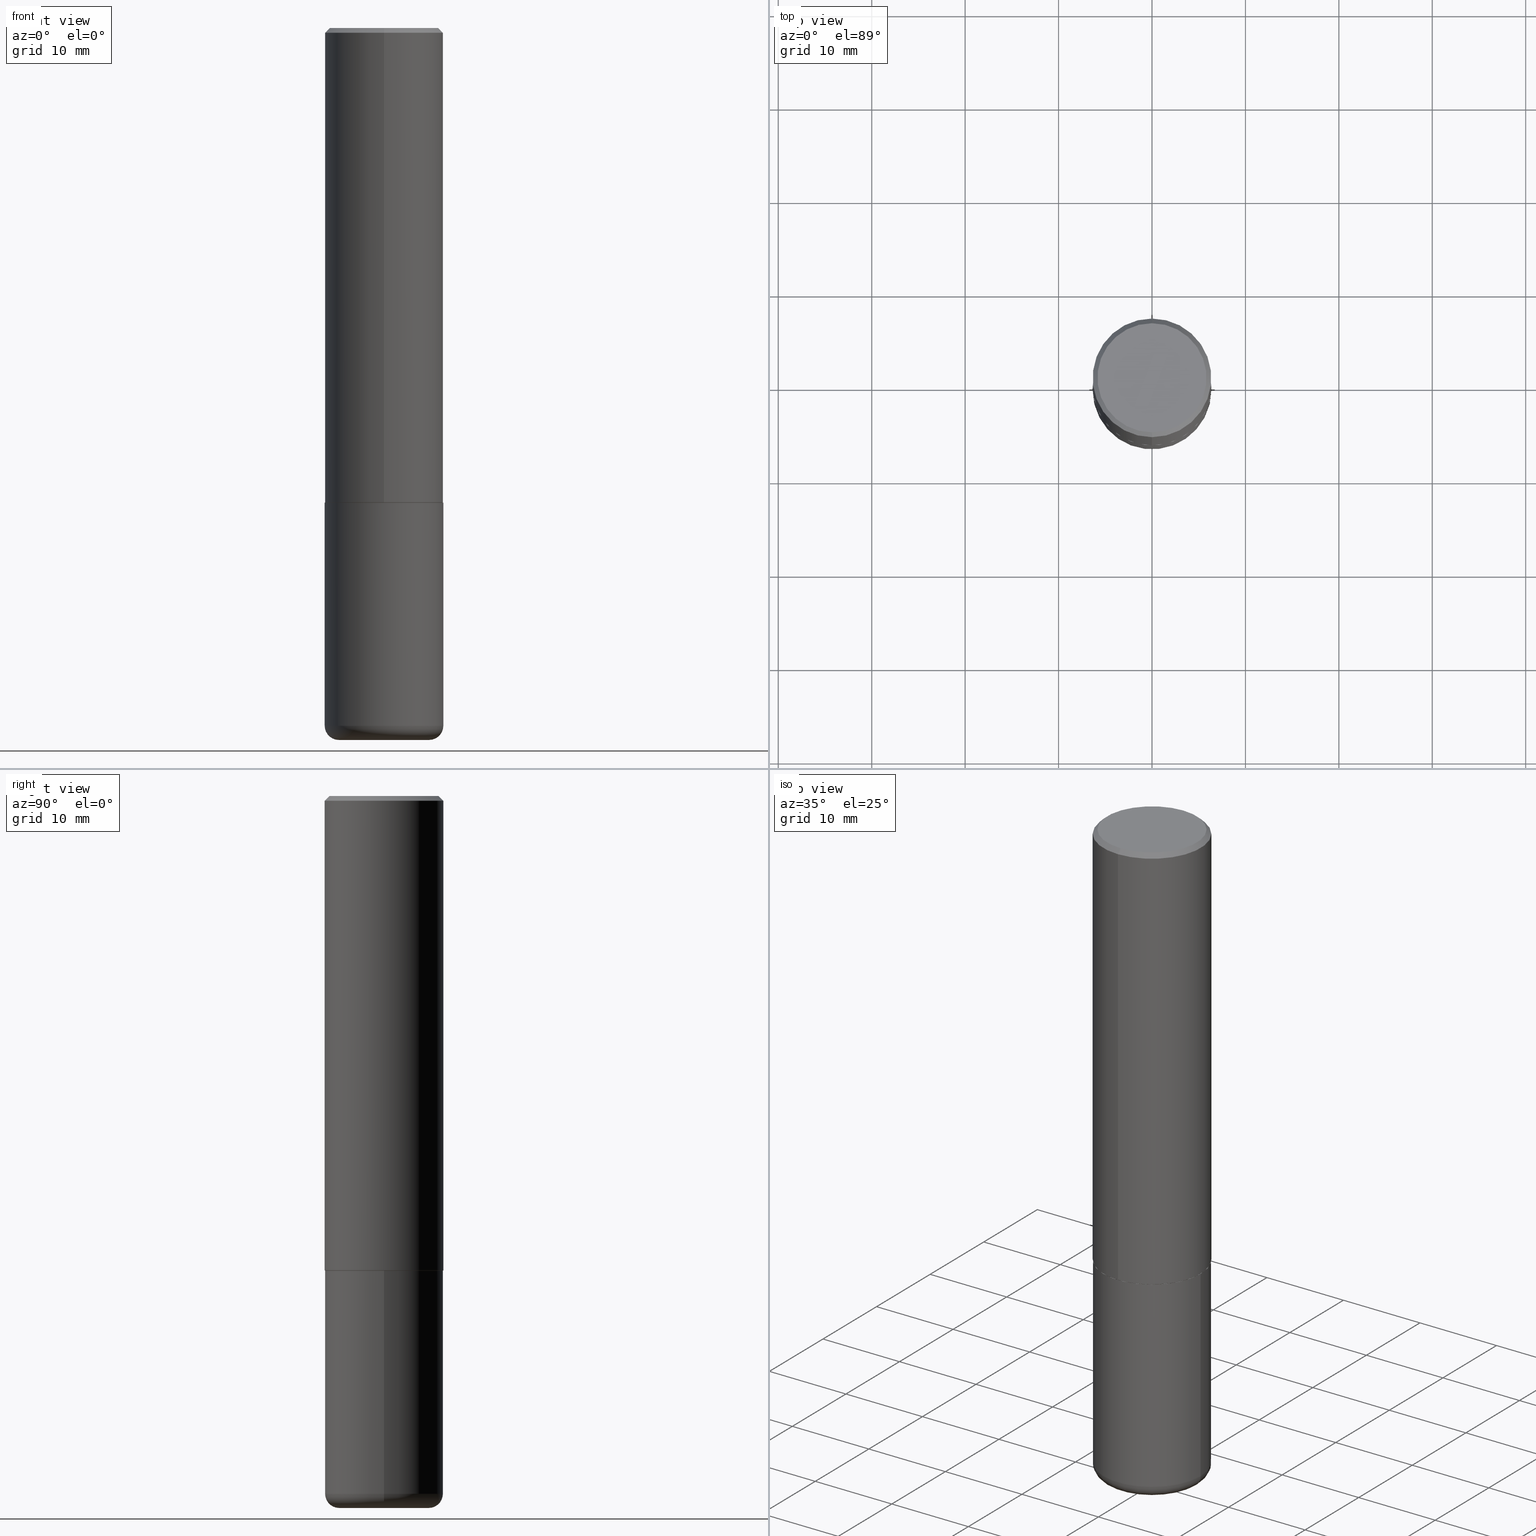
[diagram: canonical four-view strip — front | top / right | iso, engineering-drawing reading convention]
A machine part, canonical four-view strip (front | top / right | iso — engineering-drawing reading convention). The complete STEP part file that produces these views, byte-faithful:
ISO-10303-21;
HEADER;
FILE_DESCRIPTION (( 'STEP AP203' ),
    '1' );
FILE_NAME ('38336.STEP',
    '2024-03-02T23:28:40',
    ( '' ),
    ( '' ),
    'SwSTEP 2.0',
    'SolidWorks 2023',
    '' );
FILE_SCHEMA (( 'CONFIG_CONTROL_DESIGN' ));
ENDSEC;

DATA;
#1 = APPROVAL_STATUS ( 'not_yet_approved' ) ;
#2 = EDGE_CURVE ( 'NONE', #149, #206, #320, .T. ) ;
#3 = ORIENTED_EDGE ( 'NONE', *, *, #411, .F. ) ;
#4 = CONICAL_SURFACE ( 'NONE', #205, 0.2489999999999999991, 0.7853981633974141952 ) ;
#5 = FACE_OUTER_BOUND ( 'NONE', #162, .T. ) ;
#6 = EDGE_LOOP ( 'NONE', ( #123, #146, #102, #276 ) ) ;
#7 = PERSON_AND_ORGANIZATION ( #37, #291 ) ;
#8 = CARTESIAN_POINT ( 'NONE',  ( 0.2500000000000000000, -1.745740669421566678E-15, 1.219044193948983948E-29 ) ) ;
#9 = CARTESIAN_POINT ( 'NONE',  ( 4.893010930331986262E-29, -6.979993568359192387E-15, -2.000000000000000444 ) ) ;
#10 = CC_DESIGN_DATE_AND_TIME_ASSIGNMENT ( #272, #165, ( #96 ) ) ;
#11 = SHAPE_DEFINITION_REPRESENTATION ( #293, #199 ) ;
#12 = DIRECTION ( 'NONE',  ( 1.000000000000000000, -6.982962677686265133E-15, 4.883557194083112340E-29 ) ) ;
#13 = DIRECTION ( 'NONE',  ( -2.446505465165992010E-29, 3.489996784179595405E-15, 1.000000000000000000 ) ) ;
#14 = EDGE_CURVE ( 'NONE', #89, #206, #298, .T. ) ;
#15 = CARTESIAN_POINT ( 'NONE',  ( 4.890937612370273754E-29, -6.982962677686291954E-15, -2.000000000000000444 ) ) ;
#16 = ORIENTED_EDGE ( 'NONE', *, *, #221, .T. ) ;
#17 = EDGE_LOOP ( 'NONE', ( #374, #297, #16, #211 ) ) ;
#18 = LINE ( 'NONE', #312, #176 ) ;
#19 = VERTEX_POINT ( 'NONE', #352 ) ;
#20 = DIRECTION ( 'NONE',  ( -2.445468806185136597E-29, 3.491481338843145583E-15, 1.000000000000000000 ) ) ;
#21 = CC_DESIGN_APPROVAL ( #136, ( #371 ) ) ;
#22 = EDGE_CURVE ( 'NONE', #19, #89, #36, .T. ) ;
#23 = ADVANCED_FACE ( 'NONE', ( #233 ), #72, .F. ) ;
#24 = FACE_OUTER_BOUND ( 'NONE', #311, .T. ) ;
#25 = LINE ( 'NONE', #302, #279 ) ;
#26 = AXIS2_PLACEMENT_3D ( 'NONE', #387, #358, #190 ) ;
#27 = CARTESIAN_POINT ( 'NONE',  ( -0.1899999999999999745, -8.806505557691924342E-15, -2.999999999999999556 ) ) ;
#28 = EDGE_LOOP ( 'NONE', ( #175, #350, #208, #3 ) ) ;
#29 = DATE_TIME_ROLE ( 'creation_date' ) ;
#30 = CARTESIAN_POINT ( 'NONE',  ( 4.893010930331997927E-31, -6.979993568359209594E-17, -0.02000000000000005593 ) ) ;
#31 = VERTEX_POINT ( 'NONE', #348 ) ;
#32 = EDGE_CURVE ( 'NONE', #144, #331, #71, .T. ) ;
#33 = APPROVAL_PERSON_ORGANIZATION ( #300, #136, #380 ) ;
#34 = VERTEX_POINT ( 'NONE', #353 ) ;
#35 = DIRECTION ( 'NONE',  ( -2.445468806185136597E-29, 3.491481338843145583E-15, 1.000000000000000000 ) ) ;
#36 = CIRCLE ( 'NONE', #119, 0.2489999999999999991 ) ;
#37 = PERSON ( 'UNSPECIFIED', 'UNSPECIFIED', 'UNSPECIFIED', ('UNSPECIFIED'), ('UNSPECIFIED'), ('UNSPECIFIED') ) ;
#38 = PERSON_AND_ORGANIZATION ( #37, #291 ) ;
#39 = DIRECTION ( 'NONE',  ( -6.982962677686265922E-15, -1.000000000000000000, 3.483106191921935554E-15 ) ) ;
#40 = CC_DESIGN_PERSON_AND_ORGANIZATION_ASSIGNMENT ( #133, #65, ( #371 ) ) ;
#41 = LINE ( 'NONE', #337, #134 ) ;
#42 = CC_DESIGN_PERSON_AND_ORGANIZATION_ASSIGNMENT ( #152, #288, ( #289 ) ) ;
#43 = CARTESIAN_POINT ( 'NONE',  ( 1.675911042644703379E-15, 0.2299999999999997602, -5.981521084091029123E-16 ) ) ;
#44 = VERTEX_POINT ( 'NONE', #292 ) ;
#45 = AXIS2_PLACEMENT_3D ( 'NONE', #198, #196, #12 ) ;
#46 = APPLICATION_CONTEXT ( 'configuration controlled 3d designs of mechanical parts and assemblies' ) ;
#47 = DIRECTION ( 'NONE',  ( -2.445468806185136877E-29, 3.491481338843145188E-15, 1.000000000000000000 ) ) ;
#48 = ADVANCED_FACE ( 'NONE', ( #416 ), #258, .T. ) ;
#49 = DIRECTION ( 'NONE',  ( -2.446505465165992010E-29, 3.489996784179595405E-15, 1.000000000000000000 ) ) ;
#50 = LOCAL_TIME ( 18, 28, 40.00000000000000000, #218 ) ;
#51 = CIRCLE ( 'NONE', #191, 0.05999999999999966471 ) ;
#52 = EDGE_LOOP ( 'NONE', ( #181, #240, #307, #180 ) ) ;
#53 = CONICAL_SURFACE ( 'NONE', #220, 0.2500000000000000000, 0.7853981633974476129 ) ;
#54 = EDGE_CURVE ( 'NONE', #44, #97, #243, .T. ) ;
#55 = DATE_AND_TIME ( #349, #50 ) ;
#56 = DIRECTION ( 'NONE',  ( -2.446505465165992010E-29, 3.489996784179595405E-15, 1.000000000000000000 ) ) ;
#57 = CARTESIAN_POINT ( 'NONE',  ( -1.646519519465166376E-15, -0.2299999999999997602, 1.007246412313509341E-15 ) ) ;
#58 = AXIS2_PLACEMENT_3D ( 'NONE', #109, #174, #114 ) ;
#59 = COORDINATED_UNIVERSAL_TIME_OFFSET ( 5, 0, .BEHIND. ) ;
#60 = FACE_OUTER_BOUND ( 'NONE', #17, .T. ) ;
#61 = AXIS2_PLACEMENT_3D ( 'NONE', #182, #20, #250 ) ;
#62 = DATE_AND_TIME ( #257, #197 ) ;
#63 = DIRECTION ( 'NONE',  ( -2.445468806185136597E-29, 3.491481338843145583E-15, 1.000000000000000000 ) ) ;
#64 = ADVANCED_FACE ( 'NONE', ( #5 ), #53, .T. ) ;
#65 = PERSON_AND_ORGANIZATION_ROLE ( 'creator' ) ;
#66 = ORIENTED_EDGE ( 'NONE', *, *, #338, .T. ) ;
#67 = FACE_OUTER_BOUND ( 'NONE', #132, .T. ) ;
#68 = VERTEX_POINT ( 'NONE', #57 ) ;
#69 = EDGE_CURVE ( 'NONE', #206, #149, #308, .T. ) ;
#70 = EDGE_LOOP ( 'NONE', ( #139, #210, #126, #395 ) ) ;
#71 = CIRCLE ( 'NONE', #61, 0.2500000000000000000 ) ;
#72 = PLANE ( 'NONE',  #249 ) ;
#73 = PLANE ( 'NONE',  #92 ) ;
#74 = ORIENTED_EDGE ( 'NONE', *, *, #14, .F. ) ;
#75 = DIRECTION ( 'NONE',  ( -6.982962677686265922E-15, -1.000000000000000000, 3.489996784179595405E-15 ) ) ;
#76 = DIRECTION ( 'NONE',  ( -2.445468806185136597E-29, 3.491481338843145583E-15, 1.000000000000000000 ) ) ;
#77 = ORIENTED_EDGE ( 'NONE', *, *, #221, .F. ) ;
#78 = DIRECTION ( 'NONE',  ( -1.000000000000000000, 6.982962677686265922E-15, -4.876176775795935793E-29 ) ) ;
#79 = AXIS2_PLACEMENT_3D ( 'NONE', #346, #49, #111 ) ;
#80 = AXIS2_PLACEMENT_3D ( 'NONE', #9, #13, #402 ) ;
#81 = VECTOR ( 'NONE', #303, 39.37007874015748143 ) ;
#82 =( GEOMETRIC_REPRESENTATION_CONTEXT ( 3 ) GLOBAL_UNCERTAINTY_ASSIGNED_CONTEXT ( ( #403 ) ) GLOBAL_UNIT_ASSIGNED_CONTEXT ( ( #213, #150, #251 ) ) REPRESENTATION_CONTEXT ( 'NONE', 'WORKASPACE' ) );
#83 = EDGE_CURVE ( 'NONE', #19, #149, #25, .T. ) ;
#84 = CARTESIAN_POINT ( 'NONE',  ( 4.893010930331997927E-31, -6.979993568359209594E-17, -0.02000000000000005593 ) ) ;
#85 = CIRCLE ( 'NONE', #295, 0.2500000000000000000 ) ;
#86 = APPROVAL_DATE_TIME ( #62, #299 ) ;
#87 = CARTESIAN_POINT ( 'NONE',  ( 0.000000000000000000, 0.000000000000000000, 0.000000000000000000 ) ) ;
#88 = CARTESIAN_POINT ( 'NONE',  ( -1.738757706743831162E-15, -0.2490000000000069658, -1.999999999999999778 ) ) ;
#89 = VERTEX_POINT ( 'NONE', #88 ) ;
#90 = EDGE_CURVE ( 'NONE', #206, #160, #290, .T. ) ;
#91 = CARTESIAN_POINT ( 'NONE',  ( -0.1899999999999999745, -8.914923938254659640E-15, -2.940000000000000391 ) ) ;
#92 = AXIS2_PLACEMENT_3D ( 'NONE', #101, #269, #202 ) ;
#93 = ORIENTED_EDGE ( 'NONE', *, *, #215, .F. ) ;
#94 = DIRECTION ( 'NONE',  ( 6.982962677686265922E-15, 1.000000000000000000, -3.483106191921935554E-15 ) ) ;
#95 = ORIENTED_EDGE ( 'NONE', *, *, #283, .T. ) ;
#96 = SECURITY_CLASSIFICATION ( '', '', #334 ) ;
#97 = VERTEX_POINT ( 'NONE', #27 ) ;
#98 = PERSON_AND_ORGANIZATION ( #37, #291 ) ;
#99 = PERSON_AND_ORGANIZATION_ROLE ( 'classification_officer' ) ;
#100 = DIRECTION ( 'NONE',  ( 1.000000000000000000, -6.982962677686266711E-15, 4.876176775795935793E-29 ) ) ;
#101 = CARTESIAN_POINT ( 'NONE',  ( 1.606081415867839490E-15, 0.2299999999999997602, -7.004256843852046181E-16 ) ) ;
#102 = ORIENTED_EDGE ( 'NONE', *, *, #90, .T. ) ;
#103 = AXIS2_PLACEMENT_3D ( 'NONE', #316, #280, #340 ) ;
#104 = CC_DESIGN_DATE_AND_TIME_ASSIGNMENT ( #253, #29, ( #289 ) ) ;
#105 = DIRECTION ( 'NONE',  ( 1.000000000000000000, -6.982962677686275388E-15, 0.000000000000000000 ) ) ;
#106 = AXIS2_PLACEMENT_3D ( 'NONE', #384, #418, #122 ) ;
#107 = CARTESIAN_POINT ( 'NONE',  ( -5.004257251352038458E-45, 7.138689025262842706E-31, 2.045471519522032143E-16 ) ) ;
#108 = CC_DESIGN_PERSON_AND_ORGANIZATION_ASSIGNMENT ( #327, #185, ( #145 ) ) ;
#109 = CARTESIAN_POINT ( 'NONE',  ( 0.000000000000000000, 0.000000000000000000, 0.000000000000000000 ) ) ;
#110 = CONICAL_SURFACE ( 'NONE', #103, 0.2489999999999999991, 0.7853981633974141952 ) ;
#111 = DIRECTION ( 'NONE',  ( -6.982962677686265922E-15, -1.000000000000000000, 3.489996784179595405E-15 ) ) ;
#112 = EDGE_LOOP ( 'NONE', ( #313, #336 ) ) ;
#113 = CIRCLE ( 'NONE', #151, 0.2500000000000000000 ) ;
#114 = DIRECTION ( 'NONE',  ( 1.000000000000000000, -6.982962677686266711E-15, 4.876176775795935793E-29 ) ) ;
#115 = EDGE_CURVE ( 'NONE', #331, #144, #85, .T. ) ;
#116 = DIRECTION ( 'NONE',  ( 1.000000000000000000, -6.982962677686262766E-15, 0.000000000000000000 ) ) ;
#117 = CIRCLE ( 'NONE', #242, 0.2299999999999997602 ) ;
#118 = CYLINDRICAL_SURFACE ( 'NONE', #345, 0.2500000000000001110 ) ;
#119 = AXIS2_PLACEMENT_3D ( 'NONE', #130, #268, #167 ) ;
#120 = PLANE ( 'NONE',  #26 ) ;
#121 = PRODUCT_RELATED_PRODUCT_CATEGORY ( 'detail', '', ( #145 ) ) ;
#122 = DIRECTION ( 'NONE',  ( -6.982962677686266711E-15, -1.000000000000000000, 3.489996784179595799E-15 ) ) ;
#123 = ORIENTED_EDGE ( 'NONE', *, *, #283, .F. ) ;
#124 = DIRECTION ( 'NONE',  ( 5.024295867787889629E-15, 0.7071067811865257013, 0.7071067811865691111 ) ) ;
#125 = MANIFOLD_SOLID_BREP ( 'Body-Move/Copy2[2]', #359 ) ;
#126 = ORIENTED_EDGE ( 'NONE', *, *, #32, .F. ) ;
#127 = DIRECTION ( 'NONE',  ( -4.937700262164378437E-15, -0.7071067811865208164, 0.7071067811865739960 ) ) ;
#128 = APPROVAL_ROLE ( '' ) ;
#129 = LINE ( 'NONE', #168, #179 ) ;
#130 = CARTESIAN_POINT ( 'NONE',  ( 4.893010930331986262E-29, -6.979993568359192387E-15, -2.000000000000000444 ) ) ;
#131 = CYLINDRICAL_SURFACE ( 'NONE', #216, 0.2500000000000000000 ) ;
#132 = EDGE_LOOP ( 'NONE', ( #203, #282, #410, #137 ) ) ;
#133 = PERSON_AND_ORGANIZATION ( #37, #291 ) ;
#134 = VECTOR ( 'NONE', #237, 39.37007874015748854 ) ;
#135 = CARTESIAN_POINT ( 'NONE',  ( 7.189678290184301639E-29, -1.026495513619884961E-14, -2.940000000000000391 ) ) ;
#136 = APPROVAL ( #1, 'UNSPECIFIED' ) ;
#137 = ORIENTED_EDGE ( 'NONE', *, *, #115, .F. ) ;
#138 = CARTESIAN_POINT ( 'NONE',  ( -0.2500000000000000000, -6.847602067542319531E-15, -2.000000000000000444 ) ) ;
#139 = ORIENTED_EDGE ( 'NONE', *, *, #54, .T. ) ;
#140 = CIRCLE ( 'NONE', #80, 0.2489999999999999991 ) ;
#141 = CARTESIAN_POINT ( 'NONE',  ( -0.2499999999999998335, -8.488598296798600727E-15, -2.940000000000000391 ) ) ;
#142 = ORIENTED_EDGE ( 'NONE', *, *, #69, .T. ) ;
#143 = CARTESIAN_POINT ( 'NONE',  ( 0.1899999999999999745, -1.159171804495923808E-14, -2.940000000000000391 ) ) ;
#144 = VERTEX_POINT ( 'NONE', #381 ) ;
#145 = PRODUCT ( '38336', '38336', '', ( #383 ) ) ;
#146 = ORIENTED_EDGE ( 'NONE', *, *, #2, .T. ) ;
#147 = CIRCLE ( 'NONE', #362, 0.2500000000000000000 ) ;
#148 = FACE_OUTER_BOUND ( 'NONE', #52, .T. ) ;
#149 = VERTEX_POINT ( 'NONE', #415 ) ;
#150 =( NAMED_UNIT ( * ) PLANE_ANGLE_UNIT ( ) SI_UNIT ( $, .RADIAN. ) );
#151 = AXIS2_PLACEMENT_3D ( 'NONE', #364, #366, #170 ) ;
#152 = PERSON_AND_ORGANIZATION ( #37, #291 ) ;
#153 = DIRECTION ( 'NONE',  ( -2.446505465165992010E-29, 3.489996784179595405E-15, 1.000000000000000000 ) ) ;
#154 = DIRECTION ( 'NONE',  ( 1.000000000000000000, 0.000000000000000000, 0.000000000000000000 ) ) ;
#155 = PLANE ( 'NONE',  #212 ) ;
#156 = COORDINATED_UNIVERSAL_TIME_OFFSET ( 5, 0, .BEHIND. ) ;
#157 = CARTESIAN_POINT ( 'NONE',  ( 1.336053039146161825E-28, -1.847555615484388985E-15, -2.999999999999999556 ) ) ;
#158 = AXIS2_PLACEMENT_3D ( 'NONE', #30, #266, #261 ) ;
#159 = CARTESIAN_POINT ( 'NONE',  ( -1.745740669421519346E-15, -0.2500000000000072164, -1.998999999999999444 ) ) ;
#160 = VERTEX_POINT ( 'NONE', #326 ) ;
#161 = EDGE_CURVE ( 'NONE', #97, #44, #173, .T. ) ;
#162 = EDGE_LOOP ( 'NONE', ( #93, #401, #393, #365 ) ) ;
#163 = DIRECTION ( 'NONE',  ( -2.445468806185136597E-29, 3.491481338843145583E-15, 1.000000000000000000 ) ) ;
#164 = AXIS2_PLACEMENT_3D ( 'NONE', #228, #153, #324 ) ;
#165 = DATE_TIME_ROLE ( 'classification_date' ) ;
#166 = FACE_OUTER_BOUND ( 'NONE', #70, .T. ) ;
#167 = DIRECTION ( 'NONE',  ( -6.982962677686265133E-15, -1.000000000000000000, 3.291383124896702687E-15 ) ) ;
#168 = CARTESIAN_POINT ( 'NONE',  ( 1.776356839400251254E-15, 0.2500000000000001110, -8.724991960448993443E-16 ) ) ;
#169 = LOCAL_TIME ( 18, 28, 40.00000000000000000, #226 ) ;
#170 = DIRECTION ( 'NONE',  ( -6.982962677686265922E-15, -1.000000000000000000, 3.483106191921935554E-15 ) ) ;
#171 = ORIENTED_EDGE ( 'NONE', *, *, #305, .T. ) ;
#172 = CALENDAR_DATE ( 2024, 2, 3 ) ;
#173 = CIRCLE ( 'NONE', #339, 0.1899999999999999745 ) ;
#174 = DIRECTION ( 'NONE',  ( -2.445468806185136597E-29, 3.491481338843145583E-15, 1.000000000000000000 ) ) ;
#175 = ORIENTED_EDGE ( 'NONE', *, *, #338, .F. ) ;
#176 = VECTOR ( 'NONE', #285, 39.37007874015748854 ) ;
#177 = ADVANCED_FACE ( 'NONE', ( #351 ), #118, .T. ) ;
#178 = CARTESIAN_POINT ( 'NONE',  ( -0.2500000000000000000, 1.776356839400250465E-15, -1.229733772563726445E-29 ) ) ;
#179 = VECTOR ( 'NONE', #306, 39.37007874015748143 ) ;
#180 = ORIENTED_EDGE ( 'NONE', *, *, #2, .F. ) ;
#181 = ORIENTED_EDGE ( 'NONE', *, *, #83, .F. ) ;
#182 = CARTESIAN_POINT ( 'NONE',  ( 7.189678290184301639E-29, -1.026495513619884961E-14, -2.940000000000000391 ) ) ;
#183 = VECTOR ( 'NONE', #47, 39.37007874015748143 ) ;
#184 = ADVANCED_FACE ( 'NONE', ( #60 ), #207, .T. ) ;
#185 = PERSON_AND_ORGANIZATION_ROLE ( 'design_owner' ) ;
#186 = APPROVAL_DATE_TIME ( #55, #136 ) ;
#187 = CARTESIAN_POINT ( 'NONE',  ( 7.336406418555408669E-29, -1.047444401652943478E-14, -2.999999999999999556 ) ) ;
#188 = EDGE_CURVE ( 'NONE', #97, #331, #394, .T. ) ;
#189 = FACE_OUTER_BOUND ( 'NONE', #112, .T. ) ;
#190 = DIRECTION ( 'NONE',  ( -6.982962677686265922E-15, -1.000000000000000000, 3.489996784179595405E-15 ) ) ;
#191 = AXIS2_PLACEMENT_3D ( 'NONE', #143, #373, #105 ) ;
#192 = CLOSED_SHELL ( 'NONE', ( #406, #265, #23, #256, #241, #195 ) ) ;
#193 = DIRECTION ( 'NONE',  ( -1.000000000000000000, 6.982962677686265922E-15, -4.876176775795935793E-29 ) ) ;
#194 = DESIGN_CONTEXT ( 'detailed design', #46, 'design' ) ;
#195 = ADVANCED_FACE ( 'NONE', ( #24 ), #155, .T. ) ;
#196 = DIRECTION ( 'NONE',  ( -2.445468806185136597E-29, 3.491481338843145583E-15, 1.000000000000000000 ) ) ;
#197 = LOCAL_TIME ( 18, 28, 40.00000000000000000, #59 ) ;
#198 = CARTESIAN_POINT ( 'NONE',  ( 7.189678290184301639E-29, -1.026495513619884961E-14, -2.940000000000000391 ) ) ;
#199 = ADVANCED_BREP_SHAPE_REPRESENTATION ( '38336', ( #413, #125, #217 ), #82 ) ;
#200 = VECTOR ( 'NONE', #263, 39.37007874015748143 ) ;
#201 = FACE_OUTER_BOUND ( 'NONE', #28, .T. ) ;
#202 = DIRECTION ( 'NONE',  ( 6.982962677686265922E-15, 1.000000000000000000, -3.489996784179595405E-15 ) ) ;
#203 = ORIENTED_EDGE ( 'NONE', *, *, #188, .F. ) ;
#204 = ADVANCED_FACE ( 'NONE', ( #189 ), #120, .F. ) ;
#205 = AXIS2_PLACEMENT_3D ( 'NONE', #281, #376, #377 ) ;
#206 = VERTEX_POINT ( 'NONE', #159 ) ;
#207 = CONICAL_SURFACE ( 'NONE', #158, 0.2500000000000000000, 0.7853981633974476129 ) ;
#208 = ORIENTED_EDGE ( 'NONE', *, *, #275, .T. ) ;
#209 = ADVANCED_FACE ( 'NONE', ( #296 ), #73, .F. ) ;
#210 = ORIENTED_EDGE ( 'NONE', *, *, #188, .T. ) ;
#211 = ORIENTED_EDGE ( 'NONE', *, *, #370, .F. ) ;
#212 = AXIS2_PLACEMENT_3D ( 'NONE', #157, #222, #193 ) ;
#213 =( CONVERSION_BASED_UNIT ( 'INCH', #342 ) LENGTH_UNIT ( ) NAMED_UNIT ( #235 ) );
#214 = ORIENTED_EDGE ( 'NONE', *, *, #90, .F. ) ;
#215 = EDGE_CURVE ( 'NONE', #68, #160, #41, .T. ) ;
#216 = AXIS2_PLACEMENT_3D ( 'NONE', #332, #35, #100 ) ;
#217 = AXIS2_PLACEMENT_3D ( 'NONE', #260, #386, #154 ) ;
#218 = COORDINATED_UNIVERSAL_TIME_OFFSET ( 5, 0, .BEHIND. ) ;
#219 = DIRECTION ( 'NONE',  ( 1.000000000000000000, -6.982962677686273021E-15, 0.000000000000000000 ) ) ;
#220 = AXIS2_PLACEMENT_3D ( 'NONE', #84, #328, #94 ) ;
#221 = EDGE_CURVE ( 'NONE', #160, #34, #113, .T. ) ;
#222 = DIRECTION ( 'NONE',  ( 2.438088387897960049E-29, -3.491481338843145188E-15, -1.000000000000000000 ) ) ;
#223 = PERSON_AND_ORGANIZATION ( #37, #291 ) ;
#224 = DIRECTION ( 'NONE',  ( -6.982962677686266711E-15, -1.000000000000000000, 3.489996784179595799E-15 ) ) ;
#225 = DIRECTION ( 'NONE',  ( -2.445468806185136597E-29, 3.491481338843145583E-15, 1.000000000000000000 ) ) ;
#226 = COORDINATED_UNIVERSAL_TIME_OFFSET ( 5, 0, .BEHIND. ) ;
#227 = EDGE_LOOP ( 'NONE', ( #245, #369 ) ) ;
#228 = CARTESIAN_POINT ( 'NONE',  ( 4.890564424866818786E-29, -6.976503571575011888E-15, -1.999000000000000110 ) ) ;
#229 = EDGE_LOOP ( 'NONE', ( #360, #66, #232, #273 ) ) ;
#230 = PERSON_AND_ORGANIZATION_ROLE ( 'design_supplier' ) ;
#231 = APPROVAL_PERSON_ORGANIZATION ( #98, #356, #128 ) ;
#232 = ORIENTED_EDGE ( 'NONE', *, *, #361, .F. ) ;
#233 = FACE_OUTER_BOUND ( 'NONE', #267, .T. ) ;
#234 = VECTOR ( 'NONE', #127, 39.37007874015748854 ) ;
#235 = DIMENSIONAL_EXPONENTS ( 1.000000000000000000, 0.000000000000000000, 0.000000000000000000, 0.000000000000000000, 0.000000000000000000, 0.000000000000000000, 0.000000000000000000 ) ;
#236 = CC_DESIGN_PERSON_AND_ORGANIZATION_ASSIGNMENT ( #7, #99, ( #96 ) ) ;
#237 = DIRECTION ( 'NONE',  ( -4.851104656540959542E-15, -0.7071067811865493491, -0.7071067811865454633 ) ) ;
#238 = CIRCLE ( 'NONE', #79, 0.2299999999999997602 ) ;
#239 = DIRECTION ( 'NONE',  ( 1.000000000000000000, -6.982962677686265133E-15, 4.883557194083112340E-29 ) ) ;
#240 = ORIENTED_EDGE ( 'NONE', *, *, #22, .T. ) ;
#241 = ADVANCED_FACE ( 'NONE', ( #67 ), #259, .T. ) ;
#242 = AXIS2_PLACEMENT_3D ( 'NONE', #107, #287, #75 ) ;
#243 = CIRCLE ( 'NONE', #367, 0.1899999999999999745 ) ;
#244 = FACE_OUTER_BOUND ( 'NONE', #229, .T. ) ;
#245 = ORIENTED_EDGE ( 'NONE', *, *, #378, .T. ) ;
#246 = CC_DESIGN_APPROVAL ( #299, ( #289 ) ) ;
#247 = APPLICATION_CONTEXT ( 'configuration controlled 3d designs of mechanical parts and assemblies' ) ;
#248 =( LENGTH_UNIT ( ) NAMED_UNIT ( * ) SI_UNIT ( $, .METRE. ) );
#249 = AXIS2_PLACEMENT_3D ( 'NONE', #317, #252, #78 ) ;
#250 = DIRECTION ( 'NONE',  ( 1.000000000000000000, -6.982962677686262766E-15, 0.000000000000000000 ) ) ;
#251 =( NAMED_UNIT ( * ) SI_UNIT ( $, .STERADIAN. ) SOLID_ANGLE_UNIT ( ) );
#252 = DIRECTION ( 'NONE',  ( 2.438088387897960049E-29, -3.491481338843145188E-15, -1.000000000000000000 ) ) ;
#253 = DATE_AND_TIME ( #325, #254 ) ;
#254 = LOCAL_TIME ( 18, 28, 40.00000000000000000, #156 ) ;
#255 = DIRECTION ( 'NONE',  ( -2.445468806185136597E-29, 3.491481338843145583E-15, 1.000000000000000000 ) ) ;
#256 = ADVANCED_FACE ( 'NONE', ( #201 ), #131, .T. ) ;
#257 = CALENDAR_DATE ( 2024, 2, 3 ) ;
#258 = CYLINDRICAL_SURFACE ( 'NONE', #106, 0.2500000000000001110 ) ;
#259 = TOROIDAL_SURFACE ( 'NONE', #45, 0.1899999999999999745, 0.05999999999999968553 ) ;
#260 = CARTESIAN_POINT ( 'NONE',  ( 0.000000000000000000, 0.000000000000000000, 0.000000000000000000 ) ) ;
#261 = DIRECTION ( 'NONE',  ( 6.982962677686265922E-15, 1.000000000000000000, -3.483106191921935554E-15 ) ) ;
#262 = APPLICATION_PROTOCOL_DEFINITION ( 'international standard', 'config_control_design', 1994, #247 ) ;
#263 = DIRECTION ( 'NONE',  ( -2.446505465165992010E-29, 3.489996784179595405E-15, 1.000000000000000000 ) ) ;
#264 = CARTESIAN_POINT ( 'NONE',  ( -1.738757706743831162E-15, -0.2490000000000069658, -1.999999999999999778 ) ) ;
#265 = ADVANCED_FACE ( 'NONE', ( #166 ), #354, .T. ) ;
#266 = DIRECTION ( 'NONE',  ( 2.446505465165992010E-29, -3.489996784179595405E-15, -1.000000000000000000 ) ) ;
#267 = EDGE_LOOP ( 'NONE', ( #396, #405 ) ) ;
#268 = DIRECTION ( 'NONE',  ( -2.446505465165992010E-29, 3.489996784179595405E-15, 1.000000000000000000 ) ) ;
#269 = DIRECTION ( 'NONE',  ( 2.446505465165992010E-29, -3.489996784179595405E-15, -1.000000000000000000 ) ) ;
#270 = CIRCLE ( 'NONE', #277, 0.2500000000000000000 ) ;
#271 = EDGE_CURVE ( 'NONE', #34, #160, #147, .T. ) ;
#272 = DATE_AND_TIME ( #172, #169 ) ;
#273 = ORIENTED_EDGE ( 'NONE', *, *, #275, .F. ) ;
#274 = DIRECTION ( 'NONE',  ( -2.446505465165992010E-29, 3.489996784179595405E-15, 1.000000000000000000 ) ) ;
#275 = EDGE_CURVE ( 'NONE', #144, #31, #304, .T. ) ;
#276 = ORIENTED_EDGE ( 'NONE', *, *, #271, .F. ) ;
#277 = AXIS2_PLACEMENT_3D ( 'NONE', #15, #76, #278 ) ;
#278 = DIRECTION ( 'NONE',  ( 1.000000000000000000, -6.982962677686266711E-15, 0.000000000000000000 ) ) ;
#279 = VECTOR ( 'NONE', #124, 39.37007874015748854 ) ;
#280 = DIRECTION ( 'NONE',  ( -2.446505465165992010E-29, 3.489996784179595405E-15, 1.000000000000000000 ) ) ;
#281 = CARTESIAN_POINT ( 'NONE',  ( 4.893010930331986262E-29, -6.979993568359192387E-15, -2.000000000000000444 ) ) ;
#282 = ORIENTED_EDGE ( 'NONE', *, *, #161, .T. ) ;
#283 = EDGE_CURVE ( 'NONE', #149, #34, #129, .T. ) ;
#284 = CC_DESIGN_APPROVAL ( #356, ( #96 ) ) ;
#285 = DIRECTION ( 'NONE',  ( 4.937700262164543309E-15, 0.7071067811865444641, -0.7071067811865503483 ) ) ;
#286 = ORIENTED_EDGE ( 'NONE', *, *, #54, .F. ) ;
#287 = DIRECTION ( 'NONE',  ( -2.446505465165992010E-29, 3.489996784179595405E-15, 1.000000000000000000 ) ) ;
#288 = PERSON_AND_ORGANIZATION_ROLE ( 'creator' ) ;
#289 = PRODUCT_DEFINITION ( 'UNKNOWN', '', #371, #194 ) ;
#290 = LINE ( 'NONE', #414, #200 ) ;
#291 = ORGANIZATION ( 'UNSPECIFIED', 'UNSPECIFIED', '' ) ;
#292 = CARTESIAN_POINT ( 'NONE',  ( 0.1899999999999999745, -1.180120692528982640E-14, -2.999999999999999556 ) ) ;
#293 = PRODUCT_DEFINITION_SHAPE ( 'NONE', 'NONE',  #289 ) ;
#294 = CARTESIAN_POINT ( 'NONE',  ( 7.336406418555408669E-29, -1.047444401652943478E-14, -2.999999999999999556 ) ) ;
#295 = AXIS2_PLACEMENT_3D ( 'NONE', #391, #63, #116 ) ;
#296 = FACE_OUTER_BOUND ( 'NONE', #227, .T. ) ;
#297 = ORIENTED_EDGE ( 'NONE', *, *, #215, .T. ) ;
#298 = LINE ( 'NONE', #264, #234 ) ;
#299 = APPROVAL ( #389, 'UNSPECIFIED' ) ;
#300 = PERSON_AND_ORGANIZATION ( #37, #291 ) ;
#301 = ORIENTED_EDGE ( 'NONE', *, *, #69, .F. ) ;
#302 = CARTESIAN_POINT ( 'NONE',  ( 1.769251412042698169E-15, 0.2489999999999930325, -2.000000000000001332 ) ) ;
#303 = DIRECTION ( 'NONE',  ( -2.445468806185136877E-29, 3.491481338843145188E-15, 1.000000000000000000 ) ) ;
#304 = LINE ( 'NONE', #8, #81 ) ;
#305 = EDGE_CURVE ( 'NONE', #89, #19, #140, .T. ) ;
#306 = DIRECTION ( 'NONE',  ( -2.446505465165992010E-29, 3.489996784179595405E-15, 1.000000000000000000 ) ) ;
#307 = ORIENTED_EDGE ( 'NONE', *, *, #14, .T. ) ;
#308 = CIRCLE ( 'NONE', #164, 0.2500000000000002776 ) ;
#309 = APPROVAL_STATUS ( 'not_yet_approved' ) ;
#310 = CARTESIAN_POINT ( 'NONE',  ( 4.890937612370273754E-29, -6.982962677686291954E-15, -2.000000000000000444 ) ) ;
#311 = EDGE_LOOP ( 'NONE', ( #286, #357 ) ) ;
#312 = CARTESIAN_POINT ( 'NONE',  ( 1.745740669421566875E-15, 0.2499999999999999167, -0.02000000000000092676 ) ) ;
#313 = ORIENTED_EDGE ( 'NONE', *, *, #305, .F. ) ;
#314 = CYLINDRICAL_SURFACE ( 'NONE', #58, 0.2500000000000000000 ) ;
#315 = EDGE_CURVE ( 'NONE', #44, #144, #51, .T. ) ;
#316 = CARTESIAN_POINT ( 'NONE',  ( 4.893010930331986262E-29, -6.979993568359192387E-15, -2.000000000000000444 ) ) ;
#317 = CARTESIAN_POINT ( 'NONE',  ( 4.890937612370273754E-29, -6.982962677686291954E-15, -2.000000000000000444 ) ) ;
#318 = EDGE_CURVE ( 'NONE', #68, #382, #117, .T. ) ;
#319 = APPROVAL_ROLE ( '' ) ;
#320 = CIRCLE ( 'NONE', #372, 0.2500000000000002776 ) ;
#321 = DIRECTION ( 'NONE',  ( 1.000000000000000000, -6.982962677686273021E-15, 0.000000000000000000 ) ) ;
#322 = CARTESIAN_POINT ( 'NONE',  ( 4.890564424866818786E-29, -6.976503571575011888E-15, -1.999000000000000110 ) ) ;
#323 = DIRECTION ( 'NONE',  ( 7.105427357601001859E-15, 1.000000000000000000, -3.491481338843145583E-15 ) ) ;
#324 = DIRECTION ( 'NONE',  ( -6.982962677686265922E-15, -1.000000000000000000, 3.278217592397112312E-15 ) ) ;
#325 = CALENDAR_DATE ( 2024, 2, 3 ) ;
#326 = CARTESIAN_POINT ( 'NONE',  ( -1.715124499442882299E-15, -0.2500000000000000555, -0.01999999999999918510 ) ) ;
#327 = PERSON_AND_ORGANIZATION ( #37, #291 ) ;
#328 = DIRECTION ( 'NONE',  ( 2.446505465165992010E-29, -3.489996784179595405E-15, -1.000000000000000000 ) ) ;
#329 = CIRCLE ( 'NONE', #355, 0.2500000000000000000 ) ;
#330 = DIRECTION ( 'NONE',  ( -6.982962677686265922E-15, -1.000000000000000000, 3.278217592397112312E-15 ) ) ;
#331 = VERTEX_POINT ( 'NONE', #141 ) ;
#332 = CARTESIAN_POINT ( 'NONE',  ( 0.000000000000000000, 0.000000000000000000, 0.000000000000000000 ) ) ;
#333 = VERTEX_POINT ( 'NONE', #138 ) ;
#334 = SECURITY_CLASSIFICATION_LEVEL ( 'unclassified' ) ;
#335 = EDGE_LOOP ( 'NONE', ( #171, #341, #301, #74 ) ) ;
#336 = ORIENTED_EDGE ( 'NONE', *, *, #22, .F. ) ;
#337 = CARTESIAN_POINT ( 'NONE',  ( -1.715124499442882299E-15, -0.2500000000000000555, -0.01999999999999918510 ) ) ;
#338 = EDGE_CURVE ( 'NONE', #331, #333, #412, .T. ) ;
#339 = AXIS2_PLACEMENT_3D ( 'NONE', #294, #255, #219 ) ;
#340 = DIRECTION ( 'NONE',  ( -6.982962677686265133E-15, -1.000000000000000000, 3.291383124896702687E-15 ) ) ;
#341 = ORIENTED_EDGE ( 'NONE', *, *, #83, .T. ) ;
#342 = LENGTH_MEASURE_WITH_UNIT ( LENGTH_MEASURE( 0.02539999999999999897 ), #248 );
#343 = EDGE_LOOP ( 'NONE', ( #142, #95, #77, #214 ) ) ;
#344 = LOCAL_TIME ( 18, 28, 40.00000000000000000, #400 ) ;
#345 = AXIS2_PLACEMENT_3D ( 'NONE', #87, #56, #224 ) ;
#346 = CARTESIAN_POINT ( 'NONE',  ( -5.004257251352038458E-45, 7.138689025262842706E-31, 2.045471519522032143E-16 ) ) ;
#347 = ADVANCED_FACE ( 'NONE', ( #148 ), #110, .T. ) ;
#348 = CARTESIAN_POINT ( 'NONE',  ( 0.2500000000000000000, -8.728703347107858632E-15, -2.000000000000000444 ) ) ;
#349 = CALENDAR_DATE ( 2024, 2, 3 ) ;
#350 = ORIENTED_EDGE ( 'NONE', *, *, #115, .T. ) ;
#351 = FACE_OUTER_BOUND ( 'NONE', #6, .T. ) ;
#352 = CARTESIAN_POINT ( 'NONE',  ( 1.772804125721499264E-15, 0.2489999999999930325, -2.000000000000001332 ) ) ;
#353 = CARTESIAN_POINT ( 'NONE',  ( 1.745740669421566875E-15, 0.2499999999999999167, -0.02000000000000092676 ) ) ;
#354 = TOROIDAL_SURFACE ( 'NONE', #404, 0.1899999999999999745, 0.05999999999999968553 ) ;
#355 = AXIS2_PLACEMENT_3D ( 'NONE', #310, #409, #408 ) ;
#356 = APPROVAL ( #309, 'UNSPECIFIED' ) ;
#357 = ORIENTED_EDGE ( 'NONE', *, *, #161, .F. ) ;
#358 = DIRECTION ( 'NONE',  ( -2.446505465165992010E-29, 3.489996784179595405E-15, 1.000000000000000000 ) ) ;
#359 = CLOSED_SHELL ( 'NONE', ( #375, #48, #184, #64, #177, #347, #204, #209 ) ) ;
#360 = ORIENTED_EDGE ( 'NONE', *, *, #32, .T. ) ;
#361 = EDGE_CURVE ( 'NONE', #31, #333, #329, .T. ) ;
#362 = AXIS2_PLACEMENT_3D ( 'NONE', #397, #274, #39 ) ;
#363 = APPROVAL_DATE_TIME ( #368, #356 ) ;
#364 = CARTESIAN_POINT ( 'NONE',  ( 4.893010930331997927E-31, -6.979993568359209594E-17, -0.02000000000000005593 ) ) ;
#365 = ORIENTED_EDGE ( 'NONE', *, *, #271, .T. ) ;
#366 = DIRECTION ( 'NONE',  ( -2.446505465165992010E-29, 3.489996784179595405E-15, 1.000000000000000000 ) ) ;
#367 = AXIS2_PLACEMENT_3D ( 'NONE', #187, #225, #321 ) ;
#368 = DATE_AND_TIME ( #398, #344 ) ;
#369 = ORIENTED_EDGE ( 'NONE', *, *, #318, .T. ) ;
#370 = EDGE_CURVE ( 'NONE', #382, #34, #18, .T. ) ;
#371 = PRODUCT_DEFINITION_FORMATION_WITH_SPECIFIED_SOURCE ( 'ANY', '', #145, .NOT_KNOWN. ) ;
#372 = AXIS2_PLACEMENT_3D ( 'NONE', #322, #388, #330 ) ;
#373 = DIRECTION ( 'NONE',  ( -6.982962677686266711E-15, -1.000000000000000000, 3.491481338843145583E-15 ) ) ;
#374 = ORIENTED_EDGE ( 'NONE', *, *, #318, .F. ) ;
#375 = ADVANCED_FACE ( 'NONE', ( #407 ), #4, .T. ) ;
#376 = DIRECTION ( 'NONE',  ( -2.446505465165992010E-29, 3.489996784179595405E-15, 1.000000000000000000 ) ) ;
#377 = DIRECTION ( 'NONE',  ( -6.982962677686265133E-15, -1.000000000000000000, 3.291383124896702687E-15 ) ) ;
#378 = EDGE_CURVE ( 'NONE', #382, #68, #238, .T. ) ;
#379 = APPROVAL_PERSON_ORGANIZATION ( #223, #299, #319 ) ;
#380 = APPROVAL_ROLE ( '' ) ;
#381 = CARTESIAN_POINT ( 'NONE',  ( 0.2499999999999998335, -1.201069580562041471E-14, -2.940000000000000391 ) ) ;
#382 = VERTEX_POINT ( 'NONE', #43 ) ;
#383 = MECHANICAL_CONTEXT ( 'NONE', #247, 'mechanical' ) ;
#384 = CARTESIAN_POINT ( 'NONE',  ( 0.000000000000000000, 0.000000000000000000, 0.000000000000000000 ) ) ;
#385 = CC_DESIGN_PERSON_AND_ORGANIZATION_ASSIGNMENT ( #38, #230, ( #371 ) ) ;
#386 = DIRECTION ( 'NONE',  ( 0.000000000000000000, 0.000000000000000000, 1.000000000000000000 ) ) ;
#387 = CARTESIAN_POINT ( 'NONE',  ( 4.893010930331986262E-29, -6.979993568359192387E-15, -2.000000000000000444 ) ) ;
#388 = DIRECTION ( 'NONE',  ( -2.446505465165992010E-29, 3.489996784179595405E-15, 1.000000000000000000 ) ) ;
#389 = APPROVAL_STATUS ( 'not_yet_approved' ) ;
#390 = CC_DESIGN_SECURITY_CLASSIFICATION ( #96, ( #371 ) ) ;
#391 = CARTESIAN_POINT ( 'NONE',  ( 7.189678290184301639E-29, -1.026495513619884961E-14, -2.940000000000000391 ) ) ;
#392 = DIRECTION ( 'NONE',  ( -1.000000000000000000, 7.105427357600997914E-15, 0.000000000000000000 ) ) ;
#393 = ORIENTED_EDGE ( 'NONE', *, *, #370, .T. ) ;
#394 = CIRCLE ( 'NONE', #399, 0.05999999999999966471 ) ;
#395 = ORIENTED_EDGE ( 'NONE', *, *, #315, .F. ) ;
#396 = ORIENTED_EDGE ( 'NONE', *, *, #361, .T. ) ;
#397 = CARTESIAN_POINT ( 'NONE',  ( 4.893010930331997927E-31, -6.979993568359209594E-17, -0.02000000000000005593 ) ) ;
#398 = CALENDAR_DATE ( 2024, 2, 3 ) ;
#399 = AXIS2_PLACEMENT_3D ( 'NONE', #91, #323, #392 ) ;
#400 = COORDINATED_UNIVERSAL_TIME_OFFSET ( 5, 0, .BEHIND. ) ;
#401 = ORIENTED_EDGE ( 'NONE', *, *, #378, .F. ) ;
#402 = DIRECTION ( 'NONE',  ( -6.982962677686265133E-15, -1.000000000000000000, 3.291383124896702687E-15 ) ) ;
#403 = UNCERTAINTY_MEASURE_WITH_UNIT (LENGTH_MEASURE( 1.000000000000000082E-05 ), #213, 'distance_accuracy_value', 'NONE');
#404 = AXIS2_PLACEMENT_3D ( 'NONE', #135, #163, #239 ) ;
#405 = ORIENTED_EDGE ( 'NONE', *, *, #411, .T. ) ;
#406 = ADVANCED_FACE ( 'NONE', ( #244 ), #314, .T. ) ;
#407 = FACE_OUTER_BOUND ( 'NONE', #335, .T. ) ;
#408 = DIRECTION ( 'NONE',  ( 1.000000000000000000, -6.982962677686266711E-15, 0.000000000000000000 ) ) ;
#409 = DIRECTION ( 'NONE',  ( -2.445468806185136597E-29, 3.491481338843145583E-15, 1.000000000000000000 ) ) ;
#410 = ORIENTED_EDGE ( 'NONE', *, *, #315, .T. ) ;
#411 = EDGE_CURVE ( 'NONE', #333, #31, #270, .T. ) ;
#412 = LINE ( 'NONE', #178, #183 ) ;
#413 = MANIFOLD_SOLID_BREP ( 'Body-Move/Copy2[1]', #192 ) ;
#414 = CARTESIAN_POINT ( 'NONE',  ( -1.745740669421567467E-15, -0.2500000000000001110, 8.724991960448993443E-16 ) ) ;
#415 = CARTESIAN_POINT ( 'NONE',  ( 1.776356839400276497E-15, 0.2499999999999933109, -1.999000000000000998 ) ) ;
#416 = FACE_OUTER_BOUND ( 'NONE', #343, .T. ) ;
#417 = APPLICATION_PROTOCOL_DEFINITION ( 'international standard', 'config_control_design', 1994, #46 ) ;
#418 = DIRECTION ( 'NONE',  ( -2.446505465165992010E-29, 3.489996784179595405E-15, 1.000000000000000000 ) ) ;
ENDSEC;
END-ISO-10303-21;
